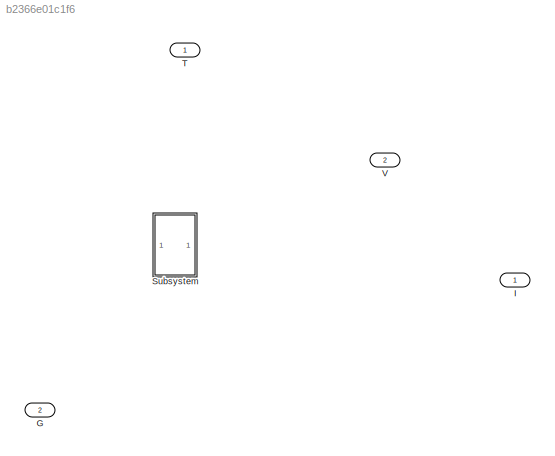
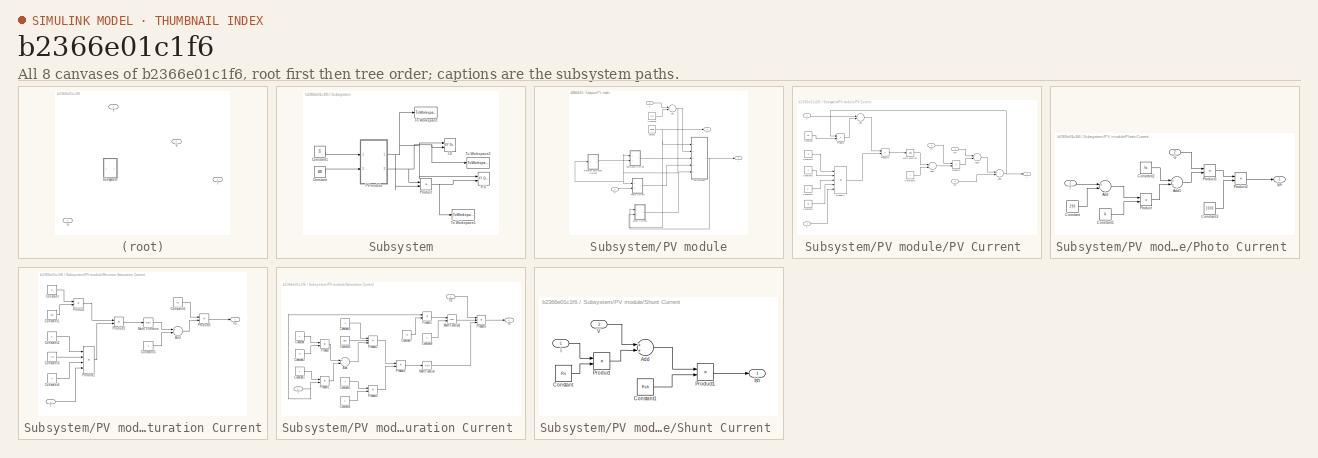
[diagram: thumbnail index - all 8 canvases of the model, root first then tree order]
MODEL slx_b2366e01c1f6
KIND model
CONFIG AbsTol = auto
CONFIG FixedStep = auto
CONFIG MaxStep = auto
CONFIG MinStep = auto
CONFIG RelTol = 1e-3
CONFIG SampleTimeConstraint = Unconstrained
CONFIG Solver = ode45
CONFIG SolverMode = Auto
CONFIG SolverName = ode45
CONFIG StartTime = 0.0
CONFIG StopTime = 40
BLOCK [Inport] G 
  IconDisplay = Port number
  Port = 2
BLOCK [Outport] I
  IconDisplay = Port number
BLOCK [SubSystem] Subsystem
  Ports = []
  RequestExecContextInheritance = off
  Variant = off
BLOCK [Constant] Subsystem/Constant
  Value = 1000
BLOCK [Constant] Subsystem/Constant1
  Value = 25
BLOCK [Reference] Subsystem/I-V  REF=simulink/Sinks/XY Graph
  Ports = [2]
  SourceBlock = simulink/Sinks/XY Graph
  SourceType = XY scope.
BLOCK [Reference] Subsystem/P-V  REF=simulink/Sinks/XY Graph
  Ports = [2]
  SourceBlock = simulink/Sinks/XY Graph
  SourceType = XY scope.
BLOCK [SubSystem] Subsystem/PV module
  InitFcn = ki=.0032,\nq=1.6e-19,\nK=1.38e-23,\nn=1.3,\nEg0=1.1,\nRs=.221,\nRsh=415.405,\nTn=298,\n\nVoc=32.9,\nIsc=8.21,\nNs=54,
  Ports = [2, 2]
  RequestExecContextInheritance = off
  Variant = off
BLOCK [Sum] Subsystem/PV module/Add
  InputSameDT = off
  OutDataTypeStr = Inherit: Inherit via internal rule
  Ports = [2, 1]
  SaturateOnIntegerOverflow = off
BLOCK [Constant] Subsystem/PV module/Constant
  Value = 273
BLOCK [Inport] Subsystem/PV module/G 
  IconDisplay = Port number
  Port = 2
BLOCK [Outport] Subsystem/PV module/I 
  IconDisplay = Port number
  Port = 2
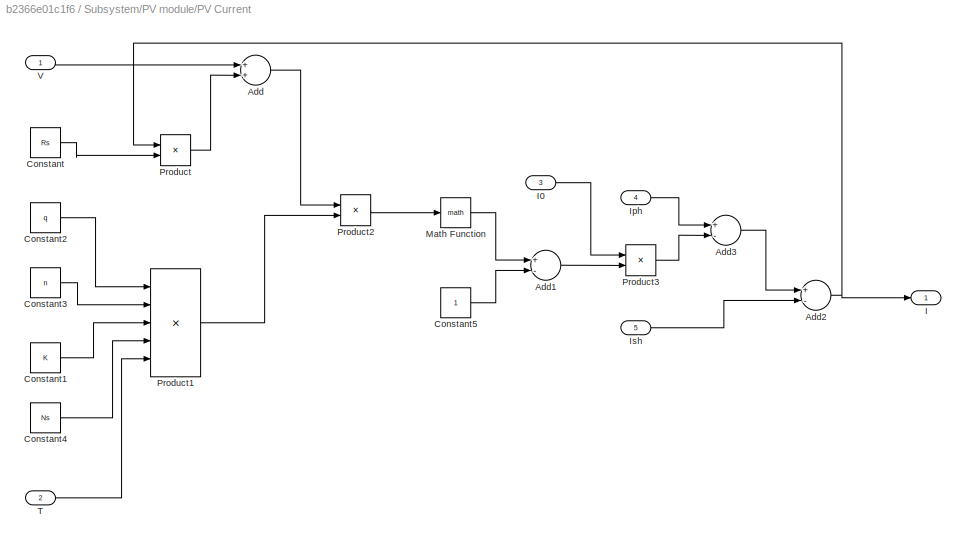
BLOCK [SubSystem] Subsystem/PV module/PV Current 
  Ports = [5, 1]
  RequestExecContextInheritance = off
  Variant = off
BLOCK [Sum] Subsystem/PV module/PV Current /Add
  InputSameDT = off
  OutDataTypeStr = Inherit: Inherit via internal rule
  Ports = [2, 1]
  SaturateOnIntegerOverflow = off
BLOCK [Sum] Subsystem/PV module/PV Current /Add1
  InputSameDT = off
  Inputs = +-
  OutDataTypeStr = Inherit: Inherit via internal rule
  Ports = [2, 1]
  SaturateOnIntegerOverflow = off
BLOCK [Sum] Subsystem/PV module/PV Current /Add2
  InputSameDT = off
  Inputs = +-
  OutDataTypeStr = Inherit: Inherit via internal rule
  Ports = [2, 1]
  SaturateOnIntegerOverflow = off
BLOCK [Sum] Subsystem/PV module/PV Current /Add3
  InputSameDT = off
  Inputs = +-
  OutDataTypeStr = Inherit: Inherit via internal rule
  Ports = [2, 1]
  SaturateOnIntegerOverflow = off
BLOCK [Constant] Subsystem/PV module/PV Current /Constant
  Value = Rs
BLOCK [Constant] Subsystem/PV module/PV Current /Constant1
  Value = K
BLOCK [Constant] Subsystem/PV module/PV Current /Constant2
  Value = q
BLOCK [Constant] Subsystem/PV module/PV Current /Constant3
  Value = n
BLOCK [Constant] Subsystem/PV module/PV Current /Constant4
  Value = Ns
BLOCK [Constant] Subsystem/PV module/PV Current /Constant5
BLOCK [Outport] Subsystem/PV module/PV Current /I 
  IconDisplay = Port number
BLOCK [Inport] Subsystem/PV module/PV Current /I0
  IconDisplay = Port number
  Port = 3
BLOCK [Inport] Subsystem/PV module/PV Current /Iph
  IconDisplay = Port number
  Port = 4
BLOCK [Inport] Subsystem/PV module/PV Current /Ish 
  IconDisplay = Port number
  Port = 5
BLOCK [Math] Subsystem/PV module/PV Current /Math Function
  Ports = [1, 1]
BLOCK [Product] Subsystem/PV module/PV Current /Product
  InputSameDT = off
  OutDataTypeStr = Inherit: Inherit via internal rule
  Ports = [2, 1]
  RndMeth = Floor
  SaturateOnIntegerOverflow = off
BLOCK [Product] Subsystem/PV module/PV Current /Product1
  InputSameDT = off
  Inputs = *////
  OutDataTypeStr = Inherit: Inherit via internal rule
  Ports = [5, 1]
  RndMeth = Floor
  SaturateOnIntegerOverflow = off
BLOCK [Product] Subsystem/PV module/PV Current /Product2
  InputSameDT = off
  OutDataTypeStr = Inherit: Inherit via internal rule
  Ports = [2, 1]
  RndMeth = Floor
  SaturateOnIntegerOverflow = off
BLOCK [Product] Subsystem/PV module/PV Current /Product3
  InputSameDT = off
  OutDataTypeStr = Inherit: Inherit via internal rule
  Ports = [2, 1]
  RndMeth = Floor
  SaturateOnIntegerOverflow = off
BLOCK [Inport] Subsystem/PV module/PV Current /T
  IconDisplay = Port number
  Port = 2
BLOCK [Inport] Subsystem/PV module/PV Current /V
  IconDisplay = Port number
BLOCK [SubSystem] Subsystem/PV module/Photo Current 
  Ports = [2, 1]
  RequestExecContextInheritance = off
  Variant = off
BLOCK [Sum] Subsystem/PV module/Photo Current /Add
  InputSameDT = off
  Inputs = +-
  OutDataTypeStr = Inherit: Inherit via internal rule
  Ports = [2, 1]
  SaturateOnIntegerOverflow = off
BLOCK [Sum] Subsystem/PV module/Photo Current /Add1
  InputSameDT = off
  OutDataTypeStr = Inherit: Inherit via internal rule
  Ports = [2, 1]
  SaturateOnIntegerOverflow = off
BLOCK [Constant] Subsystem/PV module/Photo Current /Constant
  Value = 298
BLOCK [Constant] Subsystem/PV module/Photo Current /Constant1
  Value = ki
BLOCK [Constant] Subsystem/PV module/Photo Current /Constant2
  Value = Isc
BLOCK [Constant] Subsystem/PV module/Photo Current /Constant3
  Value = 1000
BLOCK [Inport] Subsystem/PV module/Photo Current /G
  IconDisplay = Port number
  Port = 2
BLOCK [Outport] Subsystem/PV module/Photo Current /Iph 
  IconDisplay = Port number
BLOCK [Product] Subsystem/PV module/Photo Current /Product
  InputSameDT = off
  OutDataTypeStr = Inherit: Inherit via internal rule
  Ports = [2, 1]
  RndMeth = Floor
  SaturateOnIntegerOverflow = off
BLOCK [Product] Subsystem/PV module/Photo Current /Product1
  InputSameDT = off
  OutDataTypeStr = Inherit: Inherit via internal rule
  Ports = [2, 1]
  RndMeth = Floor
  SaturateOnIntegerOverflow = off
BLOCK [Product] Subsystem/PV module/Photo Current /Product2
  InputSameDT = off
  Inputs = */
  OutDataTypeStr = Inherit: Inherit via internal rule
  Ports = [2, 1]
  RndMeth = Floor
  SaturateOnIntegerOverflow = off
BLOCK [Inport] Subsystem/PV module/Photo Current /T
  IconDisplay = Port number
BLOCK [SubSystem] Subsystem/PV module/Reverse Saturation Current
  Ports = [1, 1]
  RequestExecContextInheritance = off
  Variant = off
BLOCK [Sum] Subsystem/PV module/Reverse Saturation Current/Add
  InputSameDT = off
  Inputs = +-
  OutDataTypeStr = Inherit: Inherit via internal rule
  Ports = [2, 1]
  SaturateOnIntegerOverflow = off
BLOCK [Constant] Subsystem/PV module/Reverse Saturation Current/Constant
  Value = q
BLOCK [Constant] Subsystem/PV module/Reverse Saturation Current/Constant1
  Value = Voc
BLOCK [Constant] Subsystem/PV module/Reverse Saturation Current/Constant2
  Value = n
BLOCK [Constant] Subsystem/PV module/Reverse Saturation Current/Constant3
  Value = Ns
BLOCK [Constant] Subsystem/PV module/Reverse Saturation Current/Constant4
  Value = K
BLOCK [Constant] Subsystem/PV module/Reverse Saturation Current/Constant5
BLOCK [Constant] Subsystem/PV module/Reverse Saturation Current/Constant6
  Value = Isc
BLOCK [Outport] Subsystem/PV module/Reverse Saturation Current/Irs 
  IconDisplay = Port number
BLOCK [Math] Subsystem/PV module/Reverse Saturation Current/Math Function
  Ports = [1, 1]
BLOCK [Product] Subsystem/PV module/Reverse Saturation Current/Product
  InputSameDT = off
  OutDataTypeStr = Inherit: Inherit via internal rule
  Ports = [2, 1]
  RndMeth = Floor
  SaturateOnIntegerOverflow = off
BLOCK [Product] Subsystem/PV module/Reverse Saturation Current/Product1
  InputSameDT = off
  Inputs = 4
  OutDataTypeStr = Inherit: Inherit via internal rule
  Ports = [4, 1]
  RndMeth = Floor
  SaturateOnIntegerOverflow = off
BLOCK [Product] Subsystem/PV module/Reverse Saturation Current/Product2
  InputSameDT = off
  Inputs = */
  OutDataTypeStr = Inherit: Inherit via internal rule
  Ports = [2, 1]
  RndMeth = Floor
  SaturateOnIntegerOverflow = off
BLOCK [Product] Subsystem/PV module/Reverse Saturation Current/Product3
  InputSameDT = off
  Inputs = */
  OutDataTypeStr = Inherit: Inherit via internal rule
  Ports = [2, 1]
  RndMeth = Floor
  SaturateOnIntegerOverflow = off
BLOCK [Inport] Subsystem/PV module/Reverse Saturation Current/T
  IconDisplay = Port number
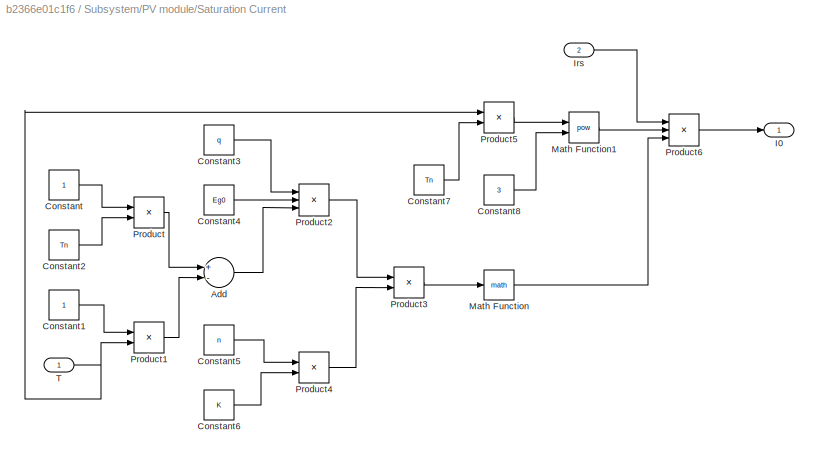
BLOCK [SubSystem] Subsystem/PV module/Saturation Current 
  Ports = [2, 1]
  RequestExecContextInheritance = off
  Variant = off
BLOCK [Sum] Subsystem/PV module/Saturation Current /Add
  InputSameDT = off
  Inputs = +-
  OutDataTypeStr = Inherit: Inherit via internal rule
  Ports = [2, 1]
  SaturateOnIntegerOverflow = off
BLOCK [Constant] Subsystem/PV module/Saturation Current /Constant
BLOCK [Constant] Subsystem/PV module/Saturation Current /Constant1
BLOCK [Constant] Subsystem/PV module/Saturation Current /Constant2
  Value = Tn
BLOCK [Constant] Subsystem/PV module/Saturation Current /Constant3
  Value = q
BLOCK [Constant] Subsystem/PV module/Saturation Current /Constant4
  Value = Eg0
BLOCK [Constant] Subsystem/PV module/Saturation Current /Constant5
  Value = n
BLOCK [Constant] Subsystem/PV module/Saturation Current /Constant6
  Value = K
BLOCK [Constant] Subsystem/PV module/Saturation Current /Constant7
  Value = Tn
BLOCK [Constant] Subsystem/PV module/Saturation Current /Constant8
  Value = 3
BLOCK [Outport] Subsystem/PV module/Saturation Current /I0 
  IconDisplay = Port number
BLOCK [Inport] Subsystem/PV module/Saturation Current /Irs
  IconDisplay = Port number
  Port = 2
BLOCK [Math] Subsystem/PV module/Saturation Current /Math Function
  Ports = [1, 1]
BLOCK [Math] Subsystem/PV module/Saturation Current /Math Function1
  Operator = pow
  Ports = [2, 1]
BLOCK [Product] Subsystem/PV module/Saturation Current /Product
  InputSameDT = off
  Inputs = */
  OutDataTypeStr = Inherit: Inherit via internal rule
  Ports = [2, 1]
  RndMeth = Floor
  SaturateOnIntegerOverflow = off
BLOCK [Product] Subsystem/PV module/Saturation Current /Product1
  InputSameDT = off
  Inputs = */
  OutDataTypeStr = Inherit: Inherit via internal rule
  Ports = [2, 1]
  RndMeth = Floor
  SaturateOnIntegerOverflow = off
BLOCK [Product] Subsystem/PV module/Saturation Current /Product2
  InputSameDT = off
  Inputs = ***
  OutDataTypeStr = Inherit: Inherit via internal rule
  Ports = [3, 1]
  RndMeth = Floor
  SaturateOnIntegerOverflow = off
BLOCK [Product] Subsystem/PV module/Saturation Current /Product3
  InputSameDT = off
  Inputs = */
  OutDataTypeStr = Inherit: Inherit via internal rule
  Ports = [2, 1]
  RndMeth = Floor
  SaturateOnIntegerOverflow = off
BLOCK [Product] Subsystem/PV module/Saturation Current /Product4
  InputSameDT = off
  Inputs = **
  OutDataTypeStr = Inherit: Inherit via internal rule
  Ports = [2, 1]
  RndMeth = Floor
  SaturateOnIntegerOverflow = off
BLOCK [Product] Subsystem/PV module/Saturation Current /Product5
  InputSameDT = off
  Inputs = */
  OutDataTypeStr = Inherit: Inherit via internal rule
  Ports = [2, 1]
  RndMeth = Floor
  SaturateOnIntegerOverflow = off
BLOCK [Product] Subsystem/PV module/Saturation Current /Product6
  InputSameDT = off
  Inputs = ***
  OutDataTypeStr = Inherit: Inherit via internal rule
  Ports = [3, 1]
  RndMeth = Floor
  SaturateOnIntegerOverflow = off
BLOCK [Inport] Subsystem/PV module/Saturation Current /T
  IconDisplay = Port number
BLOCK [SubSystem] Subsystem/PV module/Shunt Current 
  Ports = [2, 1]
  RequestExecContextInheritance = off
  Variant = off
BLOCK [Sum] Subsystem/PV module/Shunt Current /Add
  InputSameDT = off
  OutDataTypeStr = Inherit: Inherit via internal rule
  Ports = [2, 1]
  SaturateOnIntegerOverflow = off
BLOCK [Constant] Subsystem/PV module/Shunt Current /Constant
  Value = Rs
BLOCK [Constant] Subsystem/PV module/Shunt Current /Constant1
  Value = Rsh
BLOCK [Inport] Subsystem/PV module/Shunt Current /I
  IconDisplay = Port number
BLOCK [Outport] Subsystem/PV module/Shunt Current /Ish
  IconDisplay = Port number
BLOCK [Product] Subsystem/PV module/Shunt Current /Product
  InputSameDT = off
  OutDataTypeStr = Inherit: Inherit via internal rule
  Ports = [2, 1]
  RndMeth = Floor
  SaturateOnIntegerOverflow = off
BLOCK [Product] Subsystem/PV module/Shunt Current /Product1
  InputSameDT = off
  Inputs = */
  OutDataTypeStr = Inherit: Inherit via internal rule
  Ports = [2, 1]
  RndMeth = Floor
  SaturateOnIntegerOverflow = off
BLOCK [Inport] Subsystem/PV module/Shunt Current /V 
  IconDisplay = Port number
  Port = 2
BLOCK [Inport] Subsystem/PV module/T 
  IconDisplay = Port number
BLOCK [Outport] Subsystem/PV module/V
  IconDisplay = Port number
BLOCK [Reference] Subsystem/PV module/Voltage   REF=simulink/Sources/Ramp
  Ports = [0, 1]
  SourceBlock = simulink/Sources/Ramp
  SourceType = Ramp
BLOCK [Product] Subsystem/Product
  InputSameDT = off
  OutDataTypeStr = Inherit: Inherit via internal rule
  Ports = [2, 1]
  RndMeth = Floor
  SaturateOnIntegerOverflow = off
BLOCK [ToWorkspace] Subsystem/To Workspace
  Decimation = 2
  FixptAsFi = on
  MaxDataPoints = inf
  Ports = [1]
  SampleTime = .01
  Save2DSignal = 3-D array (concatenate along third dimension)
  VariableName = V
BLOCK [ToWorkspace] Subsystem/To Workspace1
  Decimation = 2
  FixptAsFi = on
  MaxDataPoints = inf
  Ports = [1]
  SampleTime = .01
  Save2DSignal = 3-D array (concatenate along third dimension)
  VariableName = P
BLOCK [ToWorkspace] Subsystem/To Workspace2
  Decimation = 2
  FixptAsFi = on
  MaxDataPoints = inf
  Ports = [1]
  SampleTime = .01
  Save2DSignal = 3-D array (concatenate along third dimension)
  VariableName = I
BLOCK [Inport] T 
  IconDisplay = Port number
BLOCK [Outport] V
  IconDisplay = Port number
  Port = 2
LINE Subsystem/Constant1:1 -> Subsystem/PV module:1
LINE Subsystem/Constant:1 -> Subsystem/PV module:2
NET Subsystem/PV module/Add:1 -> Subsystem/PV module/PV Current :2, Subsystem/PV module/Photo Current :1, Subsystem/PV module/Reverse Saturation Current:1, Subsystem/PV module/Saturation Current :1
LINE Subsystem/PV module/Constant:1 -> Subsystem/PV module/Add:2
LINE Subsystem/PV module/G :1 -> Subsystem/PV module/Photo Current :2
LINE Subsystem/PV module/PV Current /Add1:1 -> Subsystem/PV module/PV Current /Product3:2
NET Subsystem/PV module/PV Current /Add2:1 -> Subsystem/PV module/PV Current /I :1, Subsystem/PV module/PV Current /Product:1
LINE Subsystem/PV module/PV Current /Add3:1 -> Subsystem/PV module/PV Current /Add2:1
LINE Subsystem/PV module/PV Current /Add:1 -> Subsystem/PV module/PV Current /Product2:1
LINE Subsystem/PV module/PV Current /Constant1:1 -> Subsystem/PV module/PV Current /Product1:3
LINE Subsystem/PV module/PV Current /Constant2:1 -> Subsystem/PV module/PV Current /Product1:1
LINE Subsystem/PV module/PV Current /Constant3:1 -> Subsystem/PV module/PV Current /Product1:2
LINE Subsystem/PV module/PV Current /Constant4:1 -> Subsystem/PV module/PV Current /Product1:4
LINE Subsystem/PV module/PV Current /Constant5:1 -> Subsystem/PV module/PV Current /Add1:2
LINE Subsystem/PV module/PV Current /Constant:1 -> Subsystem/PV module/PV Current /Product:2
LINE Subsystem/PV module/PV Current /I0:1 -> Subsystem/PV module/PV Current /Product3:1
LINE Subsystem/PV module/PV Current /Iph:1 -> Subsystem/PV module/PV Current /Add3:1
LINE Subsystem/PV module/PV Current /Ish :1 -> Subsystem/PV module/PV Current /Add2:2
LINE Subsystem/PV module/PV Current /Math Function:1 -> Subsystem/PV module/PV Current /Add1:1
LINE Subsystem/PV module/PV Current /Product1:1 -> Subsystem/PV module/PV Current /Product2:2
LINE Subsystem/PV module/PV Current /Product2:1 -> Subsystem/PV module/PV Current /Math Function:1
LINE Subsystem/PV module/PV Current /Product3:1 -> Subsystem/PV module/PV Current /Add3:2
LINE Subsystem/PV module/PV Current /Product:1 -> Subsystem/PV module/PV Current /Add:2
LINE Subsystem/PV module/PV Current /T:1 -> Subsystem/PV module/PV Current /Product1:5
LINE Subsystem/PV module/PV Current /V:1 -> Subsystem/PV module/PV Current /Add:1
NET Subsystem/PV module/PV Current :1 -> Subsystem/PV module/I :1, Subsystem/PV module/Shunt Current :1
LINE Subsystem/PV module/Photo Current /Add1:1 -> Subsystem/PV module/Photo Current /Product1:2
LINE Subsystem/PV module/Photo Current /Add:1 -> Subsystem/PV module/Photo Current /Product:1
LINE Subsystem/PV module/Photo Current /Constant1:1 -> Subsystem/PV module/Photo Current /Product:2
LINE Subsystem/PV module/Photo Current /Constant2:1 -> Subsystem/PV module/Photo Current /Add1:1
LINE Subsystem/PV module/Photo Current /Constant3:1 -> Subsystem/PV module/Photo Current /Product2:2
LINE Subsystem/PV module/Photo Current /Constant:1 -> Subsystem/PV module/Photo Current /Add:2
LINE Subsystem/PV module/Photo Current /G:1 -> Subsystem/PV module/Photo Current /Product1:1
LINE Subsystem/PV module/Photo Current /Product1:1 -> Subsystem/PV module/Photo Current /Product2:1
LINE Subsystem/PV module/Photo Current /Product2:1 -> Subsystem/PV module/Photo Current /Iph :1
LINE Subsystem/PV module/Photo Current /Product:1 -> Subsystem/PV module/Photo Current /Add1:2
LINE Subsystem/PV module/Photo Current /T:1 -> Subsystem/PV module/Photo Current /Add:1
LINE Subsystem/PV module/Photo Current :1 -> Subsystem/PV module/PV Current :4
LINE Subsystem/PV module/Reverse Saturation Current/Add:1 -> Subsystem/PV module/Reverse Saturation Current/Product3:2
LINE Subsystem/PV module/Reverse Saturation Current/Constant1:1 -> Subsystem/PV module/Reverse Saturation Current/Product:2
LINE Subsystem/PV module/Reverse Saturation Current/Constant2:1 -> Subsystem/PV module/Reverse Saturation Current/Product1:1
LINE Subsystem/PV module/Reverse Saturation Current/Constant3:1 -> Subsystem/PV module/Reverse Saturation Current/Product1:2
LINE Subsystem/PV module/Reverse Saturation Current/Constant4:1 -> Subsystem/PV module/Reverse Saturation Current/Product1:3
LINE Subsystem/PV module/Reverse Saturation Current/Constant5:1 -> Subsystem/PV module/Reverse Saturation Current/Add:2
LINE Subsystem/PV module/Reverse Saturation Current/Constant6:1 -> Subsystem/PV module/Reverse Saturation Current/Product3:1
LINE Subsystem/PV module/Reverse Saturation Current/Constant:1 -> Subsystem/PV module/Reverse Saturation Current/Product:1
LINE Subsystem/PV module/Reverse Saturation Current/Math Function:1 -> Subsystem/PV module/Reverse Saturation Current/Add:1
LINE Subsystem/PV module/Reverse Saturation Current/Product1:1 -> Subsystem/PV module/Reverse Saturation Current/Product2:2
LINE Subsystem/PV module/Reverse Saturation Current/Product2:1 -> Subsystem/PV module/Reverse Saturation Current/Math Function:1
LINE Subsystem/PV module/Reverse Saturation Current/Product3:1 -> Subsystem/PV module/Reverse Saturation Current/Irs :1
LINE Subsystem/PV module/Reverse Saturation Current/Product:1 -> Subsystem/PV module/Reverse Saturation Current/Product2:1
LINE Subsystem/PV module/Reverse Saturation Current/T:1 -> Subsystem/PV module/Reverse Saturation Current/Product1:4
LINE Subsystem/PV module/Reverse Saturation Current:1 -> Subsystem/PV module/Saturation Current :2
LINE Subsystem/PV module/Saturation Current /Add:1 -> Subsystem/PV module/Saturation Current /Product2:3
LINE Subsystem/PV module/Saturation Current /Constant1:1 -> Subsystem/PV module/Saturation Current /Product1:1
LINE Subsystem/PV module/Saturation Current /Constant2:1 -> Subsystem/PV module/Saturation Current /Product:2
LINE Subsystem/PV module/Saturation Current /Constant3:1 -> Subsystem/PV module/Saturation Current /Product2:1
LINE Subsystem/PV module/Saturation Current /Constant4:1 -> Subsystem/PV module/Saturation Current /Product2:2
LINE Subsystem/PV module/Saturation Current /Constant5:1 -> Subsystem/PV module/Saturation Current /Product4:1
LINE Subsystem/PV module/Saturation Current /Constant6:1 -> Subsystem/PV module/Saturation Current /Product4:2
LINE Subsystem/PV module/Saturation Current /Constant7:1 -> Subsystem/PV module/Saturation Current /Product5:2
LINE Subsystem/PV module/Saturation Current /Constant8:1 -> Subsystem/PV module/Saturation Current /Math Function1:2
LINE Subsystem/PV module/Saturation Current /Constant:1 -> Subsystem/PV module/Saturation Current /Product:1
LINE Subsystem/PV module/Saturation Current /Irs:1 -> Subsystem/PV module/Saturation Current /Product6:1
LINE Subsystem/PV module/Saturation Current /Math Function1:1 -> Subsystem/PV module/Saturation Current /Product6:2
LINE Subsystem/PV module/Saturation Current /Math Function:1 -> Subsystem/PV module/Saturation Current /Product6:3
LINE Subsystem/PV module/Saturation Current /Product1:1 -> Subsystem/PV module/Saturation Current /Add:2
LINE Subsystem/PV module/Saturation Current /Product2:1 -> Subsystem/PV module/Saturation Current /Product3:1
LINE Subsystem/PV module/Saturation Current /Product3:1 -> Subsystem/PV module/Saturation Current /Math Function:1
LINE Subsystem/PV module/Saturation Current /Product4:1 -> Subsystem/PV module/Saturation Current /Product3:2
LINE Subsystem/PV module/Saturation Current /Product5:1 -> Subsystem/PV module/Saturation Current /Math Function1:1
LINE Subsystem/PV module/Saturation Current /Product6:1 -> Subsystem/PV module/Saturation Current /I0 :1
LINE Subsystem/PV module/Saturation Current /Product:1 -> Subsystem/PV module/Saturation Current /Add:1
NET Subsystem/PV module/Saturation Current /T:1 -> Subsystem/PV module/Saturation Current /Product1:2, Subsystem/PV module/Saturation Current /Product5:1
LINE Subsystem/PV module/Saturation Current :1 -> Subsystem/PV module/PV Current :3
LINE Subsystem/PV module/Shunt Current /Add:1 -> Subsystem/PV module/Shunt Current /Product1:1
LINE Subsystem/PV module/Shunt Current /Constant1:1 -> Subsystem/PV module/Shunt Current /Product1:2
LINE Subsystem/PV module/Shunt Current /Constant:1 -> Subsystem/PV module/Shunt Current /Product:2
LINE Subsystem/PV module/Shunt Current /I:1 -> Subsystem/PV module/Shunt Current /Product:1
LINE Subsystem/PV module/Shunt Current /Product1:1 -> Subsystem/PV module/Shunt Current /Ish:1
LINE Subsystem/PV module/Shunt Current /Product:1 -> Subsystem/PV module/Shunt Current /Add:2
LINE Subsystem/PV module/Shunt Current /V :1 -> Subsystem/PV module/Shunt Current /Add:1
LINE Subsystem/PV module/Shunt Current :1 -> Subsystem/PV module/PV Current :5
LINE Subsystem/PV module/T :1 -> Subsystem/PV module/Add:1
NET Subsystem/PV module/Voltage :1 -> Subsystem/PV module/PV Current :1, Subsystem/PV module/Shunt Current :2, Subsystem/PV module/V:1
NET Subsystem/PV module:1 -> Subsystem/I-V:1, Subsystem/P-V:1, Subsystem/Product:2, Subsystem/To Workspace:1
NET Subsystem/PV module:2 -> Subsystem/I-V:2, Subsystem/Product:1, Subsystem/To Workspace2:1
NET Subsystem/Product:1 -> Subsystem/P-V:2, Subsystem/To Workspace1:1
note: NET lines group one-source signal fan-out (src -> all destinations, sorted); 1:1 wires keep LINE
